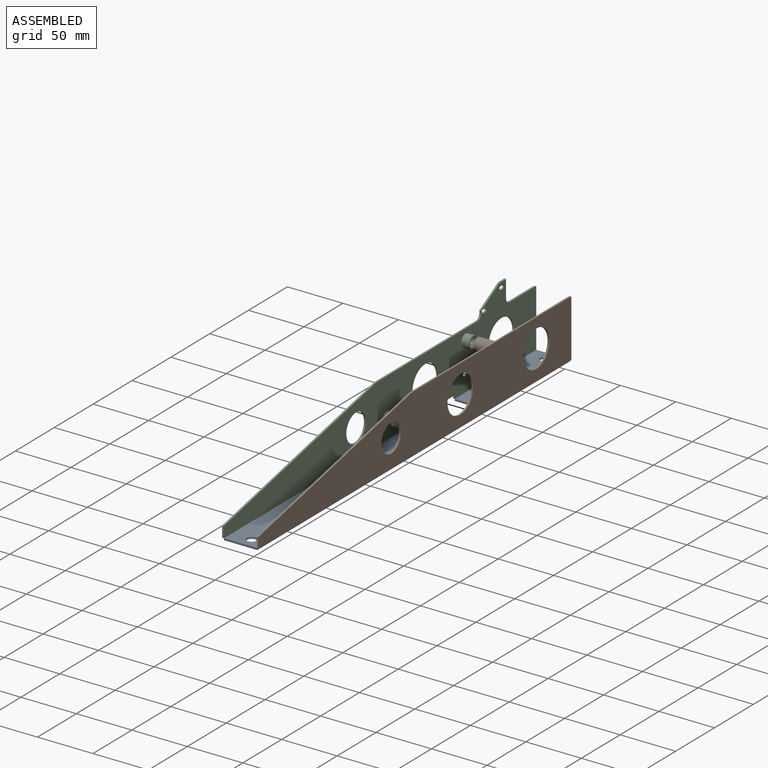
[diagram: assembled view]
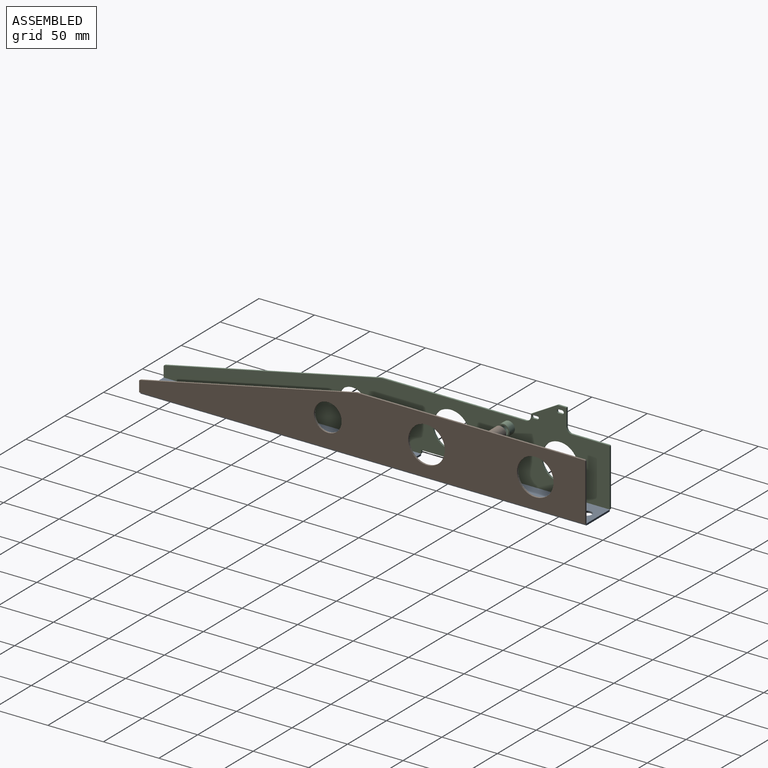
[diagram: assembled view, second angle]
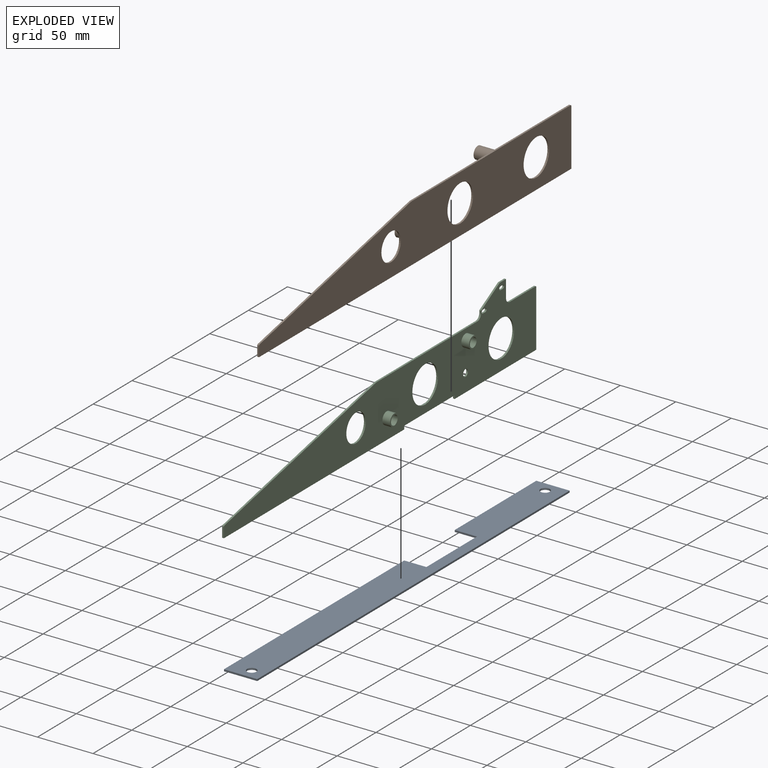
[diagram: exploded view]
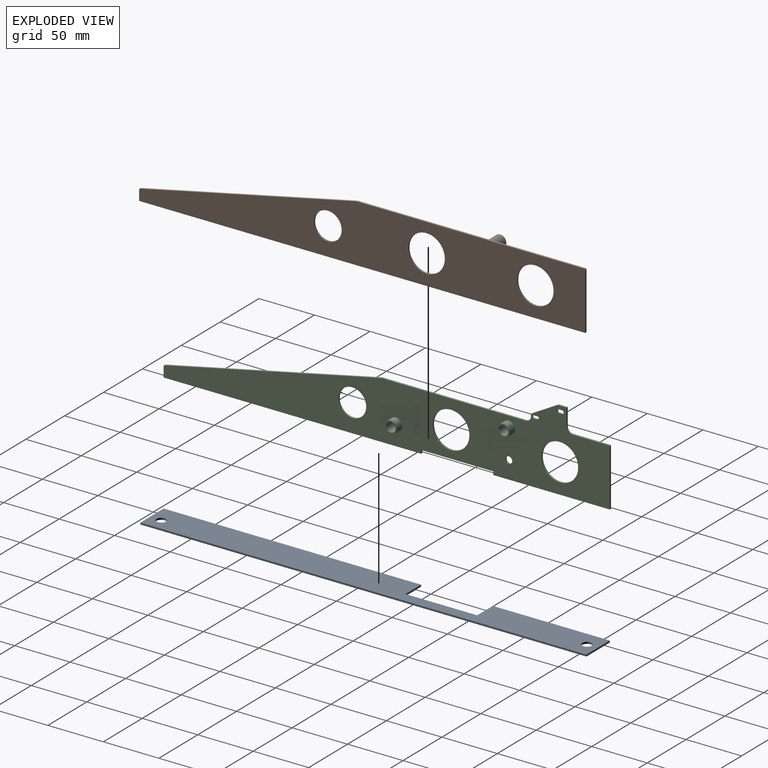
[diagram: exploded view, second angle]
ASSEMBLY  parts=3 mates=2
PART A: 12 faces, bbox 402x30x1.6 mm
  f0: plane 402x1.6mm, normal (0,1,0), area 643.2mm2, adj f1,f9,f10,f11
  f1: plane 30x1.6mm, normal (-1,0,0), area 48mm2, adj f0,f2,f10,f11
  f2: plane 105x1.6mm, normal (0,-1,0), area 168mm2, adj f1,f3,f10,f11
  f3: plane 20x1.6mm, normal (1,0,0), area 32mm2, adj f2,f4,f10,f11
  f4: plane 65x1.6mm, normal (0,-1,0), area 104mm2, adj f3,f5,f10,f11
  f5: plane 20x1.6mm, normal (-1,0,0), area 32mm2, adj f4,f6,f10,f11
  f6: plane 232x1.6mm, normal (0,-1,0), area 371.2mm2, adj f5,f9,f10,f11
  f7: cylinder r=4.25mm len=8.5mm, axis (0,0,1), area 42.7mm2, adj f10,f11
  f8: cylinder r=4.25mm len=8.5mm, axis (0,0,1), area 42.7mm2, adj f10,f11
  f9: plane 30x1.6mm, normal (1,0,0), area 48mm2, adj f0,f6,f10,f11
  f10: plane 402x30mm, normal (0,0,-1), area 10646.5mm2, adj f0,f1,f2,f3,f4,f5,f6,f7
  f11: plane 402x30mm, normal (0,0,1), area 10646.5mm2, adj f0,f1,f2,f3,f4,f5,f6,f7
PART B: 20 faces, bbox 20.6x402x52 mm
  f0: plane 195.21x41.83mm, normal (0,-0.21,0.98), area 319.4mm2, adj f1,f9,f10,f11
  f1: cylinder r=1mm len=1.6mm, axis (-1,0,0), area 2.2mm2, adj f0,f2,f10,f11
  f2: plane 9.19x1.6mm, normal (0,-1,0), area 14.7mm2, adj f1,f3,f10,f11
  f3: plane 402x1.6mm, normal (0,0,-1), area 643.2mm2, adj f2,f4,f10,f11
  f4: plane 51x1.6mm, normal (0,1,0), area 81.6mm2, adj f3,f5,f10,f11
  f5: cylinder r=1mm len=1.6mm, axis (-1,0,0), area 2.5mm2, adj f4,f9,f10,f11
  f6: cylinder r=16.5mm len=33mm, axis (-1,0,0), area 165.9mm2, adj f10,f11
  f7: cylinder r=16.5mm len=33mm, axis (-1,0,0), area 165.9mm2, adj f10,f11
  f8: cylinder r=12.5mm len=25mm, axis (-1,0,0), area 125.7mm2, adj f10,f11
  f9: plane 205x1.6mm, normal (0,0,1), area 328mm2, adj f0,f5,f10,f11
  f10: plane 402x52mm, normal (1,0,0), area 14586.2mm2, adj f0,f1,f2,f3,f4,f5,f6,f7
  f11: plane 402x52mm, normal (-1,0,0), area 14396.1mm2, adj f0,f1,f2,f3,f4,f5,f6,f7
  f12: cylinder r=5.5mm len=19mm, axis (1,0,0), area 656.6mm2, adj f11,f13
  f13: plane 11x11mm, normal (-1,0,0), area 44.8mm2, adj f12,f16
  f14: cylinder r=5.5mm len=19mm, axis (1,0,0), area 656.6mm2, adj f11,f15
  f15: plane 11x11mm, normal (-1,0,0), area 38.3mm2, adj f14,f18
  f16: cylinder r=4mm len=18mm, axis (-1,0,0), area 452.4mm2, adj f13,f17
  f17: plane 8x8mm, normal (-1,0,0), area 50.3mm2, adj f16
  f18: cylinder r=4.25mm len=18mm, axis (-1,0,0), area 480.7mm2, adj f15,f19
  f19: plane 8.5x8.5mm, normal (-1,0,0), area 56.7mm2, adj f18
PART C: 42 faces, bbox 11x402x72.5 mm
  f0: cylinder r=1.6mm len=3.2mm, axis (-1,0,0), area 8.1mm2, adj f1,f29,f30,f31
  f1: plane 2.99x1.6mm, normal (0,0,1), area 4.8mm2, adj f0,f2,f30,f31
  f2: cylinder r=1.6mm len=3.2mm, axis (-1,0,0), area 8mm2, adj f1,f29,f30,f31
  f3: cylinder r=1.6mm len=3.2mm, axis (-1,0,0), area 8mm2, adj f4,f23,f30,f31
  f4: plane 2.99x1.6mm, normal (0,0,1), area 4.8mm2, adj f3,f5,f30,f31
  f5: cylinder r=1.6mm len=3.2mm, axis (-1,0,0), area 8mm2, adj f4,f23,f30,f31
  f6: cylinder r=5mm len=5mm, axis (-1,0,0), area 12.6mm2, adj f7,f24,f30,f31
  f7: plane 130x1.6mm, normal (0,0,1), area 208mm2, adj f6,f8,f30,f31
  f8: plane 195.21x41.83mm, normal (0,-0.21,0.98), area 319.4mm2, adj f7,f9,f30,f31
  f9: cylinder r=1mm len=1.6mm, axis (-1,0,0), area 2.2mm2, adj f8,f10,f30,f31
  f10: plane 9.19x1.6mm, normal (0,-1,0), area 14.7mm2, adj f9,f11,f30,f31
  f11: plane 232x1.6mm, normal (0,0,-1), area 371.2mm2, adj f10,f12,f30,f31
  f12: plane 3x1.6mm, normal (0,1,0), area 4.8mm2, adj f11,f13,f30,f31
  f13: plane 65x1.6mm, normal (0,0,-1), area 104mm2, adj f12,f14,f30,f31
  f14: plane 3x1.6mm, normal (0,-1,0), area 4.8mm2, adj f13,f15,f30,f31
  f15: plane 105x1.6mm, normal (0,0,-1), area 168mm2, adj f14,f16,f30,f31
  f16: plane 51x1.6mm, normal (0,1,0), area 81.6mm2, adj f15,f17,f30,f31
  f17: cylinder r=1mm len=1.6mm, axis (-1,0,0), area 2.5mm2, adj f16,f18,f30,f31
  f18: plane 33x1.6mm, normal (0,0,1), area 52.8mm2, adj f17,f19,f30,f31
  f19: cylinder r=5mm len=5mm, axis (-1,0,0), area 12.6mm2, adj f18,f20,f30,f31
  f20: plane 15.5x1.6mm, normal (0,1,0), area 24.8mm2, adj f19,f21,f30,f31
  f21: plane 8x1.6mm, normal (0,0,1), area 12.8mm2, adj f20,f22,f30,f31
  f22: plane 24x13.57mm, normal (0,-0.49,0.87), area 44.1mm2, adj f21,f24,f30,f31
  f23: plane 2.99x1.6mm, normal (0,0,-1), area 4.8mm2, adj f3,f5,f30,f31
  f24: plane 1.93x1.6mm, normal (0,-1,0), area 3.1mm2, adj f6,f22,f30,f31
  f25: cylinder r=16.5mm len=33mm, axis (-1,0,0), area 165.9mm2, adj f30,f31
  f26: cylinder r=16.5mm len=33mm, axis (-1,0,0), area 165.9mm2, adj f30,f31
  f27: cylinder r=12.5mm len=25mm, axis (-1,0,0), area 125.7mm2, adj f30,f31
  f28: cylinder r=3.1mm len=6.2mm, axis (-1,0,0), area 31.2mm2, adj f30,f31
  f29: plane 2.99x1.6mm, normal (0,0,-1), area 4.8mm2, adj f0,f2,f30,f31
  f30: plane 402x72.5mm, normal (1,0,0), area 14639.6mm2, adj f0,f1,f2,f3,f4,f5,f6,f7
  f31: plane 402x72.5mm, normal (-1,0,0), area 14639.6mm2, adj f0,f1,f2,f3,f4,f5,f6,f7
  f32: cylinder r=5.5mm len=11mm, axis (-1,0,0), area 238.4mm2, adj f30,f35
  f33: cylinder r=4.25mm len=11mm, axis (-1,0,0), area 293.7mm2, adj f35,f36
  f34: cylinder r=5.5mm len=11mm, axis (-1,0,0), area 86.4mm2, adj f31,f36
  f35: plane 11x11mm, normal (1,0,0), area 38.3mm2, adj f32,f33
  f36: plane 11x11mm, normal (-1,0,0), area 38.3mm2, adj f33,f34
  f37: cylinder r=5.5mm len=11mm, axis (-1,0,0), area 238.4mm2, adj f30,f40
  f38: cylinder r=4.25mm len=11mm, axis (-1,0,0), area 293.7mm2, adj f40,f41
  f39: cylinder r=5.5mm len=11mm, axis (-1,0,0), area 86.4mm2, adj f31,f41
  f40: plane 11x11mm, normal (1,0,0), area 38.3mm2, adj f37,f38
  f41: plane 11x11mm, normal (-1,0,0), area 38.3mm2, adj f38,f39
PLACE A rot(axis=(0,0,-1),90deg) t=(-195.64,-237.67,-12.96)mm
PLACE B t=(-165.64,164.33,-12.96)mm
PLACE C t=(-197.24,164.33,-12.96)mm
MATE fastened B.f3 <-> A.f11  axis (0,0,1) through (-165.64,164.33,-12.96)mm
MATE fastened A.f2 <-> C.f30  axis (1,0,0) through (-195.64,164.33,-12.96)mm
